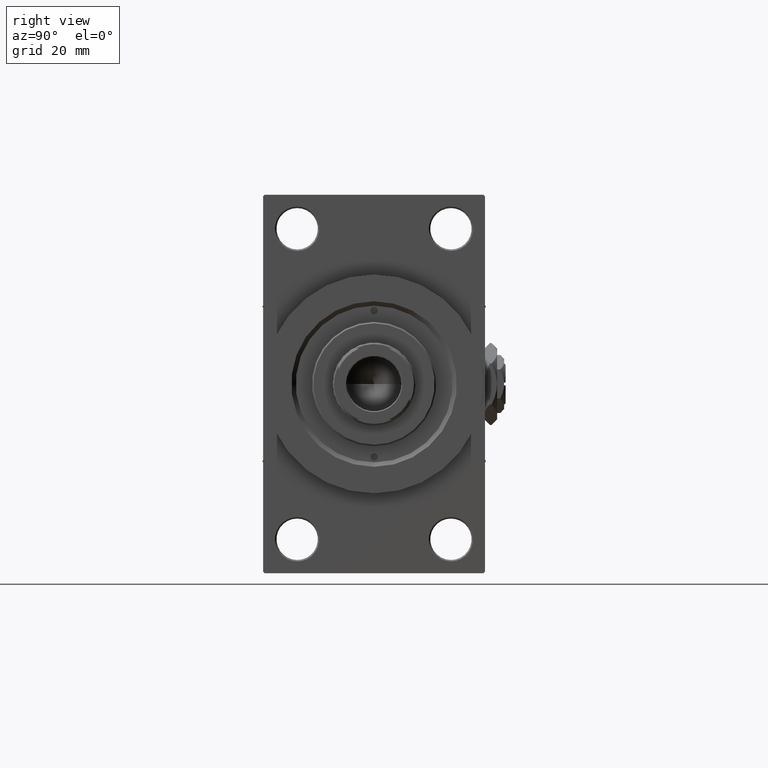
[diagram: clean part render]
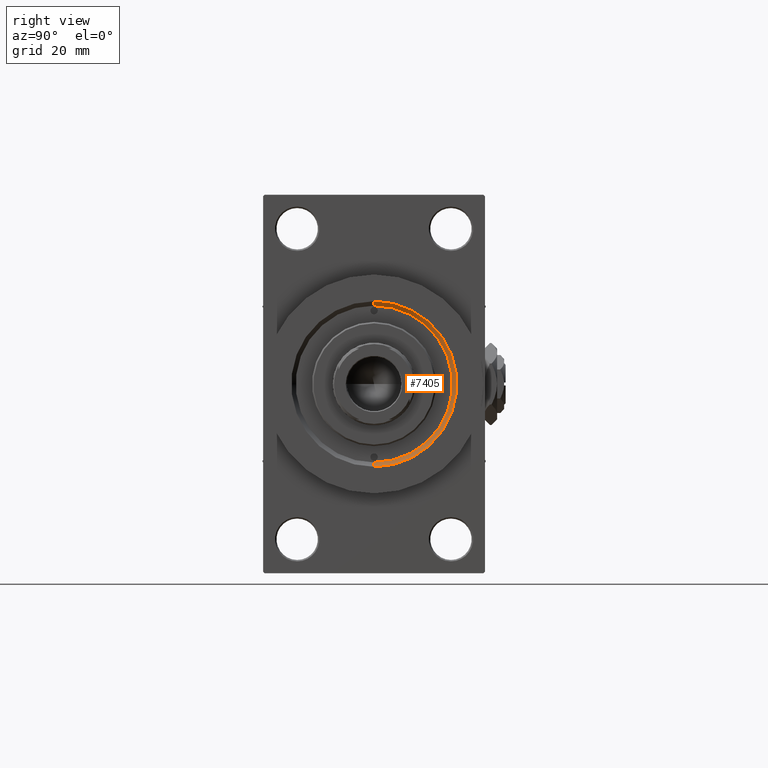
[diagram: same view with one face highlighted and labeled with its STEP entity id]
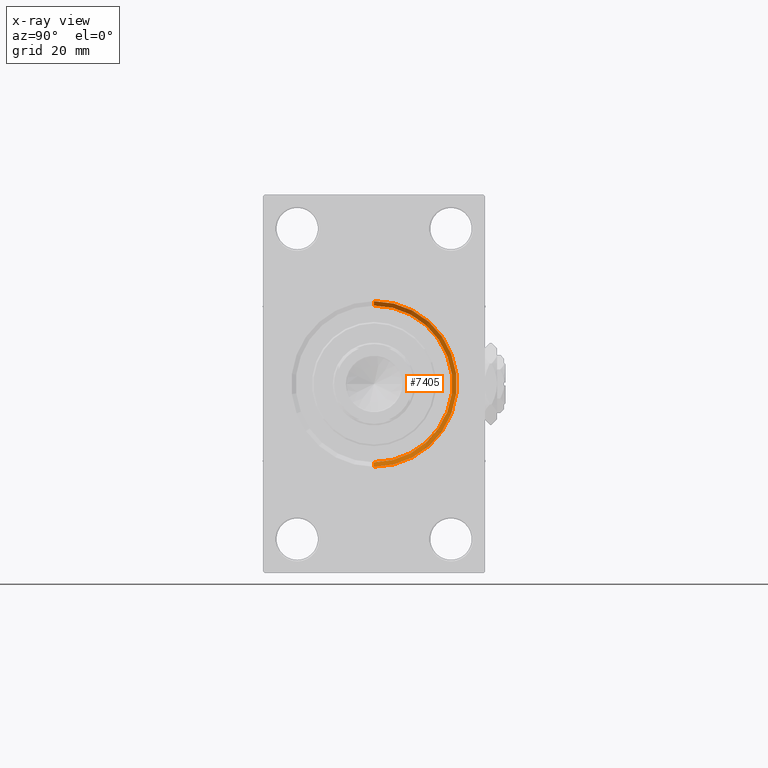
[diagram: x-ray of the same camera — body ghosted, the highlighted face saturated]
A machine part, right view. The second image highlights one B-rep face of the part: STEP entity #7405.
The next image is the same camera in x-ray: the body ghosted, the highlighted face saturated — about 0% of this face is hidden behind the body in this view.
In plain terms, the highlighted conical surface has half-angle 45 deg.
Its self-contained STEP definition (entity closure, byte-faithful):
#56 = DIRECTION ( 'NONE',  ( 0.7071067811865491270, 0.000000000000000000, -0.7071067811865459074 ) ) ;
#1515 = CIRCLE ( 'NONE', #48349, 27.99999999999994316 ) ;
#7231 = DIRECTION ( 'NONE',  ( 1.000000000000000000, 0.000000000000000000, 0.000000000000000000 ) ) ;
#7405 = ADVANCED_FACE ( 'NONE', ( #13965 ), #17314, .F. ) ;
#8741 = VERTEX_POINT ( 'NONE', #28821 ) ;
#10367 = VERTEX_POINT ( 'NONE', #19315 ) ;
#11399 = VECTOR ( 'NONE', #35462, 1000.000000000000114 ) ;
#11446 = DIRECTION ( 'NONE',  ( 0.000000000000000000, 0.000000000000000000, -1.000000000000000000 ) ) ;
#11639 = DIRECTION ( 'NONE',  ( 1.000000000000000000, 0.000000000000000000, 0.000000000000000000 ) ) ;
#12428 = DIRECTION ( 'NONE',  ( 0.000000000000000000, 0.000000000000000000, -1.000000000000000000 ) ) ;
#13965 = FACE_OUTER_BOUND ( 'NONE', #21983, .T. ) ;
#17314 = CONICAL_SURFACE ( 'NONE', #45095, 26.50000000000000355, 0.7853981633974459475 ) ;
#18964 = CARTESIAN_POINT ( 'NONE',  ( 152.5000000000000853, 0.000000000000000000, -26.50000000000000355 ) ) ;
#19315 = CARTESIAN_POINT ( 'NONE',  ( 154.0000000000000284, 0.000000000000000000, -27.99999999999994316 ) ) ;
#20334 = CARTESIAN_POINT ( 'NONE',  ( 152.5000000000000853, 3.245314017740486554E-15, 26.50000000000000355 ) ) ;
#21983 = EDGE_LOOP ( 'NONE', ( #26666, #41734, #36820, #30745 ) ) ;
#22664 = VERTEX_POINT ( 'NONE', #23180 ) ;
#22690 = LINE ( 'NONE', #18964, #33132 ) ;
#23180 = CARTESIAN_POINT ( 'NONE',  ( 152.5000000000000853, 0.000000000000000000, -26.50000000000000355 ) ) ;
#24327 = DIRECTION ( 'NONE',  ( -1.000000000000000000, -0.000000000000000000, -0.000000000000000000 ) ) ;
#25815 = EDGE_CURVE ( 'NONE', #38235, #8741, #47153, .T. ) ;
#25860 = CARTESIAN_POINT ( 'NONE',  ( 152.5000000000000853, 0.000000000000000000, 0.000000000000000000 ) ) ;
#26220 = CIRCLE ( 'NONE', #40496, 26.50000000000000355 ) ;
#26666 = ORIENTED_EDGE ( 'NONE', *, *, #25815, .F. ) ;
#28821 = CARTESIAN_POINT ( 'NONE',  ( 154.0000000000000284, 3.429011037612582176E-15, 27.99999999999994316 ) ) ;
#30663 = EDGE_CURVE ( 'NONE', #22664, #10367, #22690, .T. ) ;
#30745 = ORIENTED_EDGE ( 'NONE', *, *, #35120, .F. ) ;
#33132 = VECTOR ( 'NONE', #56, 1000.000000000000114 ) ;
#33752 = DIRECTION ( 'NONE',  ( 0.000000000000000000, 0.000000000000000000, -1.000000000000000000 ) ) ;
#35120 = EDGE_CURVE ( 'NONE', #8741, #10367, #1515, .T. ) ;
#35261 = CARTESIAN_POINT ( 'NONE',  ( 154.0000000000000284, 0.000000000000000000, 0.000000000000000000 ) ) ;
#35462 = DIRECTION ( 'NONE',  ( 0.7071067811865491270, 8.659560562354911904E-17, 0.7071067811865459074 ) ) ;
#36534 = CARTESIAN_POINT ( 'NONE',  ( 152.5000000000000853, 3.245314017740486554E-15, 26.50000000000000355 ) ) ;
#36820 = ORIENTED_EDGE ( 'NONE', *, *, #30663, .T. ) ;
#37557 = EDGE_CURVE ( 'NONE', #22664, #38235, #26220, .T. ) ;
#38235 = VERTEX_POINT ( 'NONE', #36534 ) ;
#40496 = AXIS2_PLACEMENT_3D ( 'NONE', #25860, #7231, #11446 ) ;
#41682 = CARTESIAN_POINT ( 'NONE',  ( 152.5000000000000853, 0.000000000000000000, 0.000000000000000000 ) ) ;
#41734 = ORIENTED_EDGE ( 'NONE', *, *, #37557, .F. ) ;
#45095 = AXIS2_PLACEMENT_3D ( 'NONE', #41682, #11639, #33752 ) ;
#47153 = LINE ( 'NONE', #20334, #11399 ) ;
#48349 = AXIS2_PLACEMENT_3D ( 'NONE', #35261, #24327, #12428 ) ;